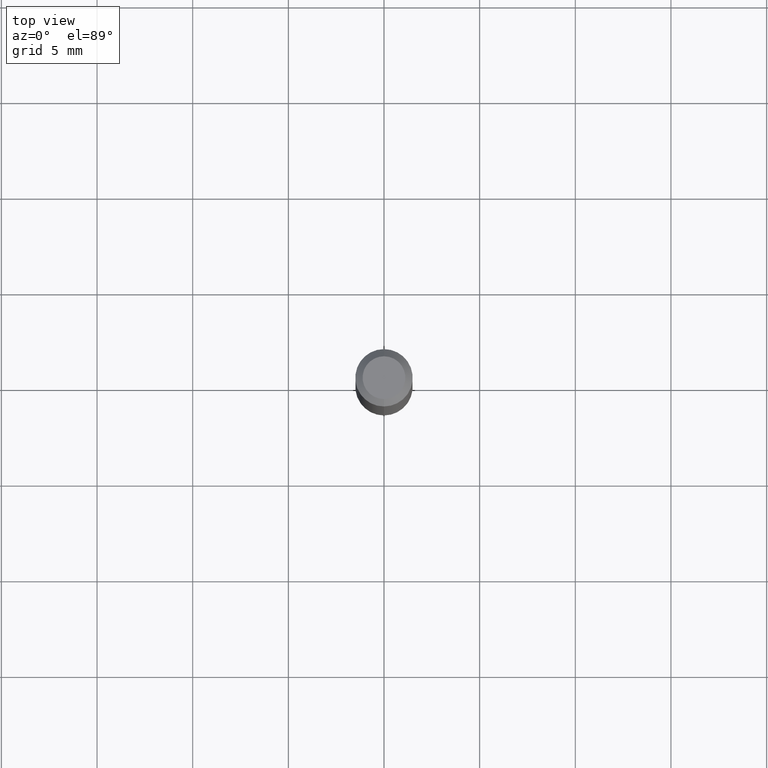
[diagram: clean part render]
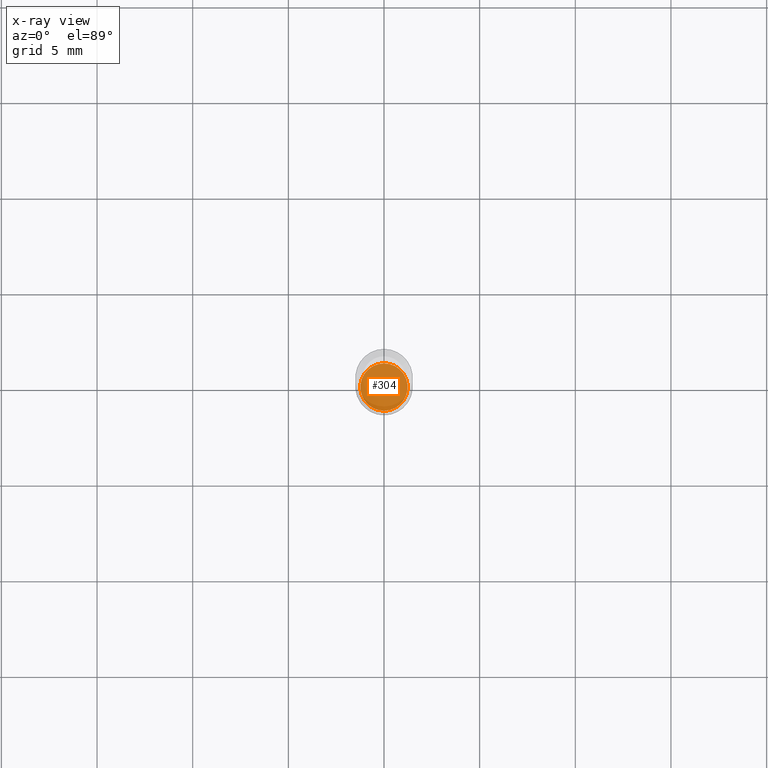
[diagram: x-ray — body ghosted, one internal face saturated and labeled with its STEP entity id]
A machine part, top view, then the same camera in x-ray: the body is ghosted and one INTERNAL B-rep face — a face not visible from any outside direction — is saturated and labeled: STEP entity #304.
In plain terms, the highlighted planar face has unit normal (-0, 0, 1).
Its self-contained STEP definition (entity closure, byte-faithful):
#14 = DIRECTION ( 'NONE',  ( -2.445540907336680445E-29, 3.491378085890391934E-15, 1.000000000000000000 ) ) ;
#20 = EDGE_CURVE ( 'NONE', #354, #318, #149, .T. ) ;
#28 = EDGE_CURVE ( 'NONE', #318, #354, #159, .T. ) ;
#36 = CARTESIAN_POINT ( 'NONE',  ( -3.400702824032937589E-16, -0.04870000000000392071, -1.122099999999999653 ) ) ;
#64 = AXIS2_PLACEMENT_3D ( 'NONE', #399, #201, #272 ) ;
#81 = PLANE ( 'NONE',  #64 ) ;
#93 = DIRECTION ( 'NONE',  ( -6.982962677686266711E-15, -1.000000000000000000, 2.804772067417108113E-15 ) ) ;
#149 = CIRCLE ( 'NONE', #210, 0.04870000000000000023 ) ;
#159 = CIRCLE ( 'NONE', #267, 0.04870000000000000023 ) ;
#201 = DIRECTION ( 'NONE',  ( -2.445540907336680165E-29, 3.491378085890391934E-15, 1.000000000000000000 ) ) ;
#210 = AXIS2_PLACEMENT_3D ( 'NONE', #221, #14, #340 ) ;
#221 = CARTESIAN_POINT ( 'NONE',  ( 2.744141452122489070E-29, -3.917675350177608325E-15, -1.122099999999999875 ) ) ;
#267 = AXIS2_PLACEMENT_3D ( 'NONE', #472, #385, #93 ) ;
#272 = DIRECTION ( 'NONE',  ( -6.982962677686265922E-15, -1.000000000000000000, 3.491378085890391934E-15 ) ) ;
#304 = ADVANCED_FACE ( 'NONE', ( #475 ), #81, .F. ) ;
#318 = VERTEX_POINT ( 'NONE', #36 ) ;
#324 = ORIENTED_EDGE ( 'NONE', *, *, #20, .F. ) ;
#340 = DIRECTION ( 'NONE',  ( -6.982962677686266711E-15, -1.000000000000000000, 2.804772067417108113E-15 ) ) ;
#354 = VERTEX_POINT ( 'NONE', #355 ) ;
#355 = CARTESIAN_POINT ( 'NONE',  ( 3.478106691545965557E-16, 0.04869999999999607976, -1.122100000000000097 ) ) ;
#385 = DIRECTION ( 'NONE',  ( -2.445540907336680445E-29, 3.491378085890391934E-15, 1.000000000000000000 ) ) ;
#399 = CARTESIAN_POINT ( 'NONE',  ( 2.744141452122489070E-29, -3.917675350177608325E-15, -1.122099999999999875 ) ) ;
#412 = EDGE_LOOP ( 'NONE', ( #500, #324 ) ) ;
#472 = CARTESIAN_POINT ( 'NONE',  ( 2.744141452122489070E-29, -3.917675350177608325E-15, -1.122099999999999875 ) ) ;
#475 = FACE_OUTER_BOUND ( 'NONE', #412, .T. ) ;
#500 = ORIENTED_EDGE ( 'NONE', *, *, #28, .F. ) ;